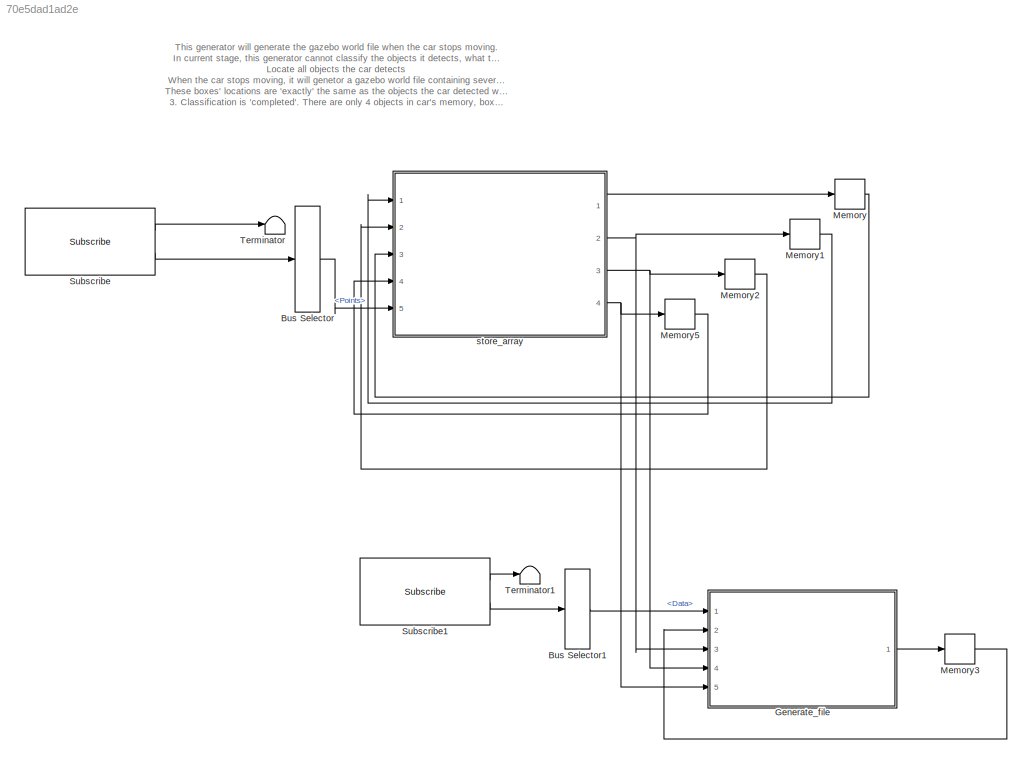
MODEL slx_70e5dad1ad2e
KIND model
CONFIG AbsTol = auto
CONFIG EnableMultiTasking = off
CONFIG FixedStep = auto
CONFIG MaxStep = auto
CONFIG MinStep = auto
CONFIG RelTol = 1e-3
CONFIG SampleTimeConstraint = Unconstrained
CONFIG Solver = FixedStepAuto
CONFIG SolverName = FixedStepAuto
CONFIG StartTime = 0.0
CONFIG StopTime = inf
WORKSPACE source: MAT-file member
WORKSPACE SL_ROS_VariableLengthArrays_MaxSizes: struct (value not decoded)
BLOCK [BusSelector] Bus Selector
  OutputSignals = Polygon.Points
  Ports = [1, 1]
BLOCK [BusSelector] Bus Selector1
  OutputSignals = Data
  Ports = [1, 1]
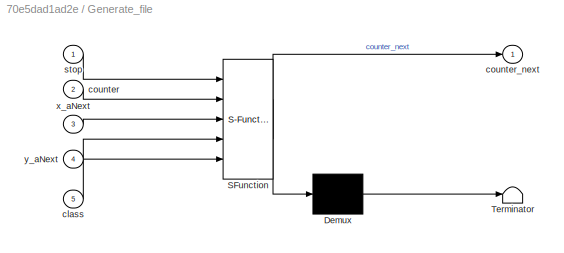
BLOCK [SubSystem] Generate_file
  ErrorFcn = Stateflow.Translate.translate
  PermitHierarchicalResolution = ExplicitOnly
  Ports = [5, 1]
  RequestExecContextInheritance = off
  SFBlockType = MATLAB Function
  TreatAsAtomicUnit = on
  Variant = off
BLOCK [Demux] Generate_file/ Demux 
  Outputs = 1
  Ports = [1, 1]
BLOCK [S-Function] Generate_file/ SFunction 
  EnableBusSupport = on
  FunctionName = sf_sfun
  PortCounts = [5 2]
  Ports = [5, 2]
  SFcnIsStateOwnerBlock = off
  SFunctionDeploymentMode = off
  Tag = Stateflow S-Function worldGenerator 1
BLOCK [Terminator] Generate_file/ Terminator 
BLOCK [Inport] Generate_file/class
  IconDisplay = Port number
  Port = 5
BLOCK [Inport] Generate_file/counter
  IconDisplay = Port number
  Port = 2
BLOCK [Outport] Generate_file/counter_next
  IconDisplay = Port number
BLOCK [Inport] Generate_file/stop
  IconDisplay = Port number
BLOCK [Inport] Generate_file/x_aNext
  IconDisplay = Port number
  Port = 3
BLOCK [Inport] Generate_file/y_aNext
  IconDisplay = Port number
  Port = 4
BLOCK [Memory] Memory
BLOCK [Memory] Memory1
BLOCK [Memory] Memory2
BLOCK [Memory] Memory3
BLOCK [Memory] Memory5
BLOCK [Reference] Subscribe  REF=robotlib/Subscribe
  Ports = [0, 2]
  SourceBlock = robotlib/Subscribe
  SourceLibraryInfo = This block requires Robotics System Toolbox
  SourceType = ROS Subscribe
BLOCK [Reference] Subscribe1  REF=robotlib/Subscribe
  Ports = [0, 2]
  SourceBlock = robotlib/Subscribe
  SourceLibraryInfo = This block requires Robotics System Toolbox
  SourceType = ROS Subscribe
BLOCK [Terminator] Terminator
BLOCK [Terminator] Terminator1
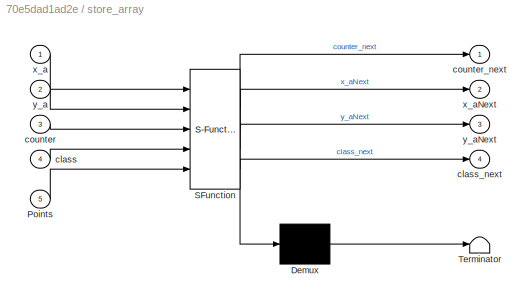
BLOCK [SubSystem] store_array
  ErrorFcn = Stateflow.Translate.translate
  PermitHierarchicalResolution = ExplicitOnly
  Ports = [5, 4]
  RequestExecContextInheritance = off
  SFBlockType = MATLAB Function
  TreatAsAtomicUnit = on
  Variant = off
BLOCK [Demux] store_array/ Demux 
  Outputs = 1
  Ports = [1, 1]
BLOCK [S-Function] store_array/ SFunction 
  EnableBusSupport = on
  FunctionName = sf_sfun
  PortCounts = [5 5]
  Ports = [5, 5]
  SFcnIsStateOwnerBlock = off
  SFunctionDeploymentMode = off
  Tag = Stateflow S-Function worldGenerator 2
BLOCK [Terminator] store_array/ Terminator 
BLOCK [Inport] store_array/Points
  IconDisplay = Port number
  Port = 5
BLOCK [Inport] store_array/class
  IconDisplay = Port number
  Port = 4
BLOCK [Outport] store_array/class_next
  IconDisplay = Port number
  Port = 4
BLOCK [Inport] store_array/counter
  IconDisplay = Port number
  Port = 3
BLOCK [Outport] store_array/counter_next
  IconDisplay = Port number
BLOCK [Inport] store_array/x_a
  IconDisplay = Port number
BLOCK [Outport] store_array/x_aNext
  IconDisplay = Port number
  Port = 2
BLOCK [Inport] store_array/y_a
  IconDisplay = Port number
  Port = 2
BLOCK [Outport] store_array/y_aNext
  IconDisplay = Port number
  Port = 3
ANNOTATION (root): This generator will generate the gazebo world file when the car stops moving. In current stage, this generator cannot classify the objects it detects, what this generator is able to do is: Locate all objects the car detects When the car stops moving, it will genetor a gazebo world file containing several 'box'. These boxes' locations are 'exactly' the same as the objects the car detected when it w...<+267ch>
LINE Bus Selector1:1 -> Generate_file:1
LINE Bus Selector:1 -> store_array:5
LINE Generate_file:1 -> Memory3:1
LINE Memory1:1 -> store_array:1
LINE Memory2:1 -> store_array:2
LINE Memory3:1 -> Generate_file:2
LINE Memory5:1 -> store_array:4
LINE Memory:1 -> store_array:3
LINE Subscribe1:1 -> Terminator1:1
LINE Subscribe1:2 -> Bus Selector1:1
LINE Subscribe:1 -> Terminator:1
LINE Subscribe:2 -> Bus Selector:1
LINE store_array:1 -> Memory:1
NET store_array:2 -> Generate_file:3, Memory1:1
NET store_array:3 -> Generate_file:4, Memory2:1
NET store_array:4 -> Generate_file:5, Memory5:1
note: NET lines group one-source signal fan-out (src -> all destinations, sorted); 1:1 wires keep LINE
CHART Generate_file states=1 transitions=1
  STATE_LABEL 'eML_blk_kernel()'
  STATE_LABEL "SCRIPT:\nfunction counter_next = fcn(stop, counter, x_aNext, y_aNext, class)\n%#codegen\n\nif(stop && counter == 0)\n    %'<userpath>/cvchallenge_task3_ws/src/cvchallenge_task3/worlds/test.world'\n    fid = fopen('gazebo_output.world', 'w+');\n    % Fixed phase 1\n\n    % <sdf version='1.4'>\n    fprintf(fid, '<sdf version=''1.4''>\\n');\n    %   <world name='default'>\n    fprintf(fid, '<world name=''default'...<+3601ch>"
CHART store_array states=1 transitions=1
  STATE_LABEL 'eML_blk_kernel()'
  STATE_LABEL 'SCRIPT:\nfunction [counter_next, x_aNext,y_aNext, class_next] = fcn(x_a, y_a, counter, class, Points)\nsize = 0;\ntmpX = 0;\ntmpY = 0;\nfor k = 1:length(Points(:))\n    if(double(Points(k).X) == tmpX && double(Points(k).Y) == tmpY)\n        break;\n    else\n        size = size + 1;\n        tmpX = double(Points(k).X);\n        tmpY = double(Points(k).Y);\n    end\nend\nx_pose = 0;\ny_pose = 0;\n\nx_test = zeros(3...<+3052ch>'
